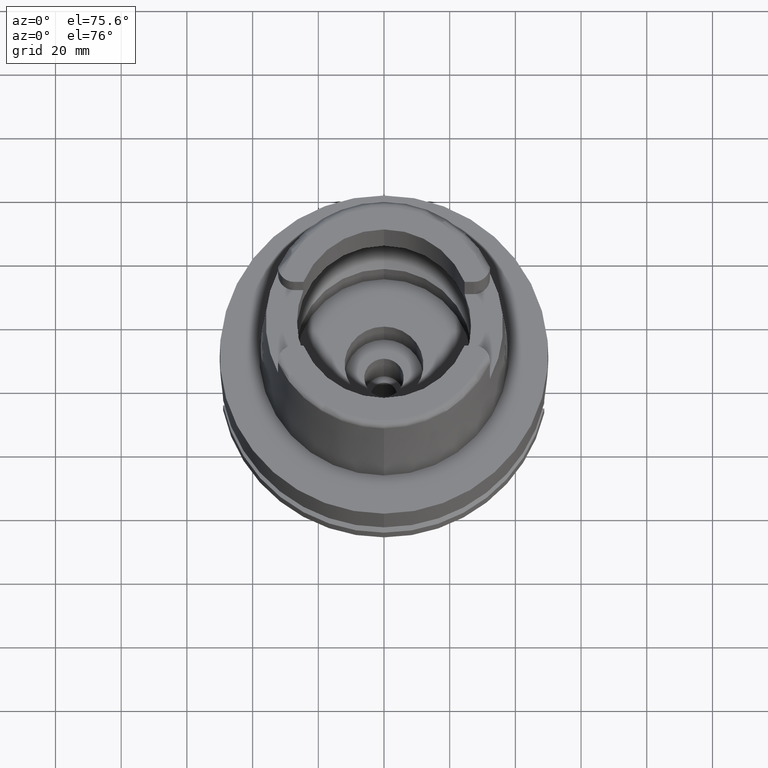
[diagram: clean part render]
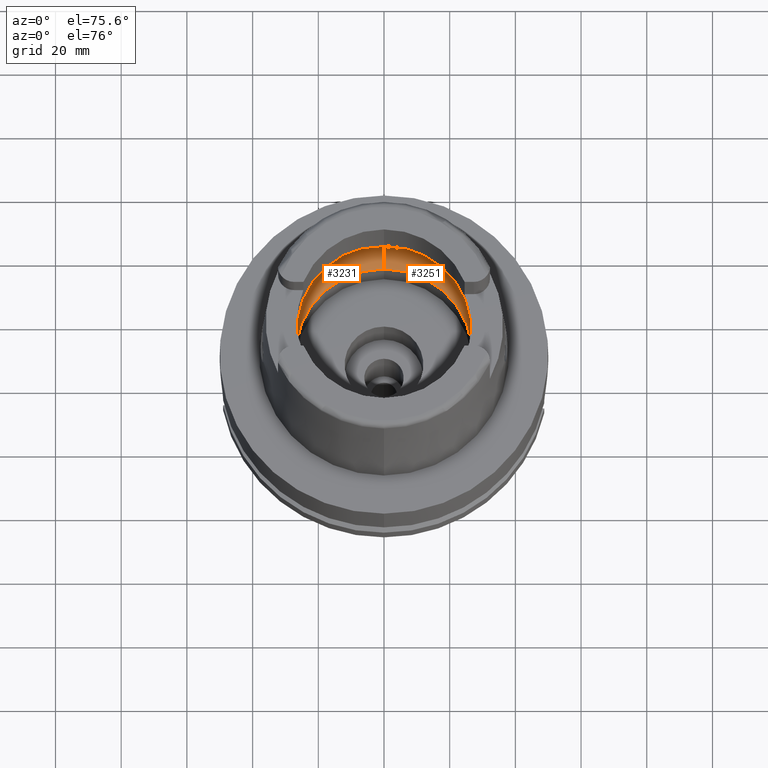
[diagram: same view with one multi-face feature highlighted, each face labeled with its STEP entity id]
A machine part, auxiliary view. The highlighted faces form ONE feature: a constant-radius fillet chain: 2 tangent blend faces with common blend radius 12 mm. The faces share edges in the B-rep.
Their STEP definitions:
[1] entity #3231 (Torus):
#584=CARTESIAN_POINT('',(-3.140918884336E1,-2.390158196044E0,9.496624327026E0));
#628=CARTESIAN_POINT('',(-3.140918884336E1,-2.390158196044E0,9.496624327026E0));
#629=CARTESIAN_POINT('',(-3.142817542711E1,-2.140654545826E0,9.388262981200E0));
#630=CARTESIAN_POINT('',(-3.145843235321E1,-1.626122075919E0,9.205188161180E0));
#631=CARTESIAN_POINT('',(-3.148416673975E1,-8.216201230800E-1,
9.037605466957E0));
#632=CARTESIAN_POINT('',(-3.148971910754E1,-2.740784276412E-1,9.E0));
#633=CARTESIAN_POINT('',(-3.148971910754E1,0.E0,9.E0));
#638=CARTESIAN_POINT('',(-3.148971910754E1,0.E0,9.E0));
#639=CARTESIAN_POINT('',(-3.148971910754E1,2.740790644793E-1,9.E0));
#640=CARTESIAN_POINT('',(-3.148416674375E1,8.216216997619E-1,9.037605463221E0));
#641=CARTESIAN_POINT('',(-3.145843206264E1,1.626128788313E0,9.205189990750E0));
#642=CARTESIAN_POINT('',(-3.142817521813E1,2.140657291993E0,9.388264173881E0));
#643=CARTESIAN_POINT('',(-3.140918884336E1,2.390158196044E0,9.496624327026E0));
#648=CARTESIAN_POINT('',(0.E0,0.E0,9.496624327026E0));
#649=DIRECTION('',(0.E0,0.E0,-1.E0));
#650=DIRECTION('',(-9.971171061384E-1,7.587803796965E-2,0.E0));
#651=AXIS2_PLACEMENT_3D('',#648,#649,#650);
#656=CARTESIAN_POINT('',(0.E0,0.E0,4.993178413024E-2));
#657=DIRECTION('',(0.E0,0.E0,1.E0));
#658=DIRECTION('',(0.E0,1.E0,0.E0));
#659=AXIS2_PLACEMENT_3D('',#656,#657,#658);
#664=CARTESIAN_POINT('',(0.E0,-1.95E1,9.496624327026E0));
#665=DIRECTION('',(-1.E0,0.E0,0.E0));
#666=DIRECTION('',(0.E0,-6.166666666667E-1,-7.872243785746E-1));
#667=AXIS2_PLACEMENT_3D('',#664,#665,#666);
#672=CARTESIAN_POINT('',(0.E0,0.E0,9.496624327026E0));
#673=DIRECTION('',(0.E0,0.E0,-1.E0));
#674=DIRECTION('',(0.E0,-1.E0,0.E0));
#675=AXIS2_PLACEMENT_3D('',#672,#673,#674);
#706=CARTESIAN_POINT('',(0.E0,1.95E1,9.496624327026E0));
#707=DIRECTION('',(1.E0,0.E0,0.E0));
#708=DIRECTION('',(0.E0,6.166666666667E-1,-7.872243785746E-1));
#709=AXIS2_PLACEMENT_3D('',#706,#707,#708);
#2545=VERTEX_POINT('',#584);
#2546=CARTESIAN_POINT('',(0.E0,-3.15E1,9.496624327026E0));
#2547=VERTEX_POINT('',#2546);
#2548=CARTESIAN_POINT('',(0.E0,3.15E1,9.496624327026E0));
#2549=VERTEX_POINT('',#2548);
#2550=CARTESIAN_POINT('',(-3.140918884336E1,2.390158196044E0,9.496624327026E0));
#2551=VERTEX_POINT('',#2550);
#2552=CARTESIAN_POINT('',(-3.148971910754E1,0.E0,9.E0));
#2553=VERTEX_POINT('',#2552);
#2558=CARTESIAN_POINT('',(0.E0,2.69E1,4.993178413024E-2));
#2559=VERTEX_POINT('',#2558);
#2560=CARTESIAN_POINT('',(0.E0,-2.69E1,4.993178413024E-2));
#2561=VERTEX_POINT('',#2560);
#3214=CARTESIAN_POINT('',(0.E0,0.E0,9.496624327026E0));
#3215=DIRECTION('',(0.E0,0.E0,1.E0));
#3216=DIRECTION('',(0.E0,1.E0,0.E0));
#3217=AXIS2_PLACEMENT_3D('',#3214,#3215,#3216);
#3218=TOROIDAL_SURFACE('',#3217,1.95E1,1.2E1);
#3219=ORIENTED_EDGE('',*,*,#3195,.T.);
#3220=ORIENTED_EDGE('',*,*,#3206,.T.);
#3221=ORIENTED_EDGE('',*,*,#3177,.T.);
#3223=ORIENTED_EDGE('',*,*,#3222,.F.);
#3225=ORIENTED_EDGE('',*,*,#3224,.T.);
#3227=ORIENTED_EDGE('',*,*,#3226,.T.);
#3228=ORIENTED_EDGE('',*,*,#3170,.T.);
#3229=EDGE_LOOP('',(#3219,#3220,#3221,#3223,#3225,#3227,#3228));
#3230=FACE_OUTER_BOUND('',#3229,.F.);
#634=B_SPLINE_CURVE_WITH_KNOTS('',3,(#628,#629,#630,#631,#632,#633),
.UNSPECIFIED.,.F.,.F.,(4,1,1,4),(0.E0,3.333333333333E-1,6.666666666667E-1,1.E0),
.UNSPECIFIED.);
#644=B_SPLINE_CURVE_WITH_KNOTS('',3,(#638,#639,#640,#641,#642,#643),
.UNSPECIFIED.,.F.,.F.,(4,1,1,4),(0.E0,3.333333333333E-1,6.666666666667E-1,1.E0),
.UNSPECIFIED.);
#652=CIRCLE('',#651,3.15E1);
#660=CIRCLE('',#659,2.69E1);
#668=CIRCLE('',#667,1.2E1);
#676=CIRCLE('',#675,3.15E1);
#710=CIRCLE('',#709,1.2E1);
#3170=EDGE_CURVE('',#2547,#2545,#676,.T.);
#3177=EDGE_CURVE('',#2551,#2549,#652,.T.);
#3195=EDGE_CURVE('',#2545,#2553,#634,.T.);
#3206=EDGE_CURVE('',#2553,#2551,#644,.T.);
#3222=EDGE_CURVE('',#2559,#2549,#710,.T.);
#3224=EDGE_CURVE('',#2559,#2561,#660,.T.);
#3226=EDGE_CURVE('',#2561,#2547,#668,.T.);
#3231=ADVANCED_FACE('',(#3230),#3218,.F.);
[2] entity #3251 (Torus):
#664=CARTESIAN_POINT('',(0.E0,-1.95E1,9.496624327026E0));
#665=DIRECTION('',(-1.E0,0.E0,0.E0));
#666=DIRECTION('',(0.E0,-6.166666666667E-1,-7.872243785746E-1));
#667=AXIS2_PLACEMENT_3D('',#664,#665,#666);
#680=CARTESIAN_POINT('',(3.148971910754E1,0.E0,9.E0));
#681=CARTESIAN_POINT('',(3.148971910754E1,-2.740788803861E-1,9.E0));
#682=CARTESIAN_POINT('',(3.148416672116E1,-8.216211757853E-1,9.037605592661E0));
#683=CARTESIAN_POINT('',(3.145843230631E1,-1.626123048458E0,9.205188456316E0));
#684=CARTESIAN_POINT('',(3.142817539690E1,-2.140654942844E0,9.388263153628E0));
#685=CARTESIAN_POINT('',(3.140918884336E1,-2.390158196044E0,9.496624327026E0));
#690=CARTESIAN_POINT('',(0.E0,0.E0,9.496624327026E0));
#691=DIRECTION('',(0.E0,0.E0,-1.E0));
#692=DIRECTION('',(9.971171061384E-1,-7.587803796965E-2,0.E0));
#693=AXIS2_PLACEMENT_3D('',#690,#691,#692);
#698=CARTESIAN_POINT('',(0.E0,0.E0,4.993178413024E-2));
#699=DIRECTION('',(0.E0,0.E0,1.E0));
#700=DIRECTION('',(0.E0,-1.E0,0.E0));
#701=AXIS2_PLACEMENT_3D('',#698,#699,#700);
#706=CARTESIAN_POINT('',(0.E0,1.95E1,9.496624327026E0));
#707=DIRECTION('',(1.E0,0.E0,0.E0));
#708=DIRECTION('',(0.E0,6.166666666667E-1,-7.872243785746E-1));
#709=AXIS2_PLACEMENT_3D('',#706,#707,#708);
#714=CARTESIAN_POINT('',(0.E0,0.E0,9.496624327026E0));
#715=DIRECTION('',(0.E0,0.E0,-1.E0));
#716=DIRECTION('',(0.E0,1.E0,0.E0));
#717=AXIS2_PLACEMENT_3D('',#714,#715,#716);
#722=CARTESIAN_POINT('',(3.140918884336E1,2.390158196044E0,9.496624327026E0));
#723=CARTESIAN_POINT('',(3.142817524867E1,2.140656890753E0,9.388263999619E0));
#724=CARTESIAN_POINT('',(3.145843210997E1,1.626127805461E0,9.205189692890E0));
#725=CARTESIAN_POINT('',(3.148416676228E1,8.216206470477E-1,9.037605337893E0));
#726=CARTESIAN_POINT('',(3.148971910754E1,2.740786118115E-1,9.E0));
#727=CARTESIAN_POINT('',(3.148971910754E1,0.E0,9.E0));
#739=CARTESIAN_POINT('',(3.140918884336E1,-2.390158196044E0,9.496624327026E0));
#770=CARTESIAN_POINT('',(3.140918884336E1,2.390158196044E0,9.496624327026E0));
#2546=CARTESIAN_POINT('',(0.E0,-3.15E1,9.496624327026E0));
#2547=VERTEX_POINT('',#2546);
#2548=CARTESIAN_POINT('',(0.E0,3.15E1,9.496624327026E0));
#2549=VERTEX_POINT('',#2548);
#2554=VERTEX_POINT('',#739);
#2556=VERTEX_POINT('',#680);
#2557=VERTEX_POINT('',#770);
#2558=CARTESIAN_POINT('',(0.E0,2.69E1,4.993178413024E-2));
#2559=VERTEX_POINT('',#2558);
#2560=CARTESIAN_POINT('',(0.E0,-2.69E1,4.993178413024E-2));
#2561=VERTEX_POINT('',#2560);
#3232=CARTESIAN_POINT('',(0.E0,0.E0,9.496624327026E0));
#3233=DIRECTION('',(0.E0,0.E0,1.E0));
#3234=DIRECTION('',(0.E0,1.E0,0.E0));
#3235=AXIS2_PLACEMENT_3D('',#3232,#3233,#3234);
#3236=TOROIDAL_SURFACE('',#3235,1.95E1,1.2E1);
#3238=ORIENTED_EDGE('',*,*,#3237,.T.);
#3240=ORIENTED_EDGE('',*,*,#3239,.T.);
#3241=ORIENTED_EDGE('',*,*,#3226,.F.);
#3243=ORIENTED_EDGE('',*,*,#3242,.T.);
#3244=ORIENTED_EDGE('',*,*,#3222,.T.);
#3246=ORIENTED_EDGE('',*,*,#3245,.T.);
#3248=ORIENTED_EDGE('',*,*,#3247,.T.);
#3249=EDGE_LOOP('',(#3238,#3240,#3241,#3243,#3244,#3246,#3248));
#3250=FACE_OUTER_BOUND('',#3249,.F.);
#668=CIRCLE('',#667,1.2E1);
#686=B_SPLINE_CURVE_WITH_KNOTS('',3,(#680,#681,#682,#683,#684,#685),
.UNSPECIFIED.,.F.,.F.,(4,1,1,4),(0.E0,3.333333333333E-1,6.666666666667E-1,1.E0),
.UNSPECIFIED.);
#694=CIRCLE('',#693,3.15E1);
#702=CIRCLE('',#701,2.69E1);
#710=CIRCLE('',#709,1.2E1);
#718=CIRCLE('',#717,3.15E1);
#728=B_SPLINE_CURVE_WITH_KNOTS('',3,(#722,#723,#724,#725,#726,#727),
.UNSPECIFIED.,.F.,.F.,(4,1,1,4),(0.E0,3.333333333333E-1,6.666666666667E-1,1.E0),
.UNSPECIFIED.);
#3222=EDGE_CURVE('',#2559,#2549,#710,.T.);
#3226=EDGE_CURVE('',#2561,#2547,#668,.T.);
#3237=EDGE_CURVE('',#2556,#2554,#686,.T.);
#3239=EDGE_CURVE('',#2554,#2547,#694,.T.);
#3242=EDGE_CURVE('',#2561,#2559,#702,.T.);
#3245=EDGE_CURVE('',#2549,#2557,#718,.T.);
#3247=EDGE_CURVE('',#2557,#2556,#728,.T.);
#3251=ADVANCED_FACE('',(#3250),#3236,.F.);